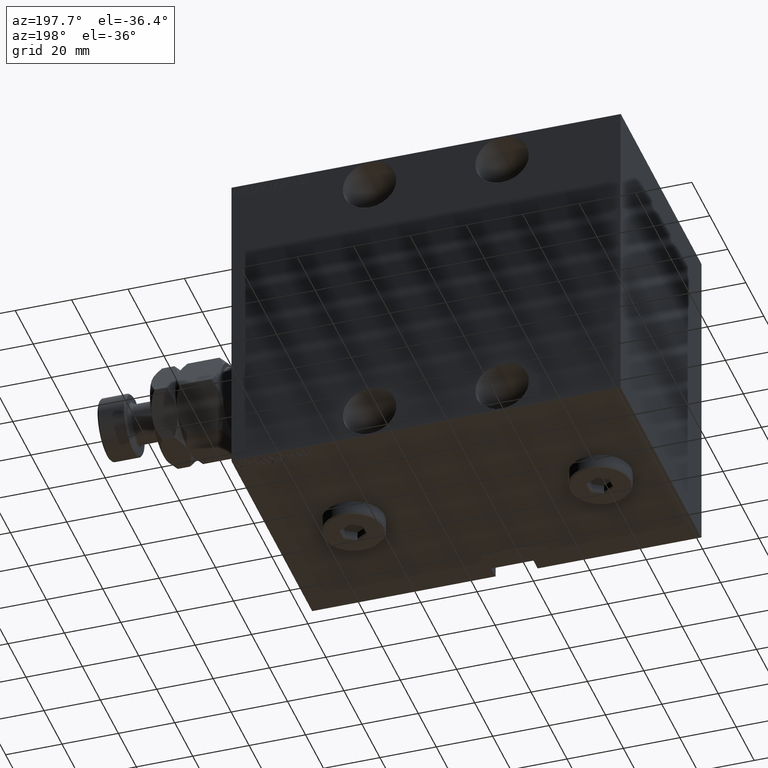
[diagram: clean part render]
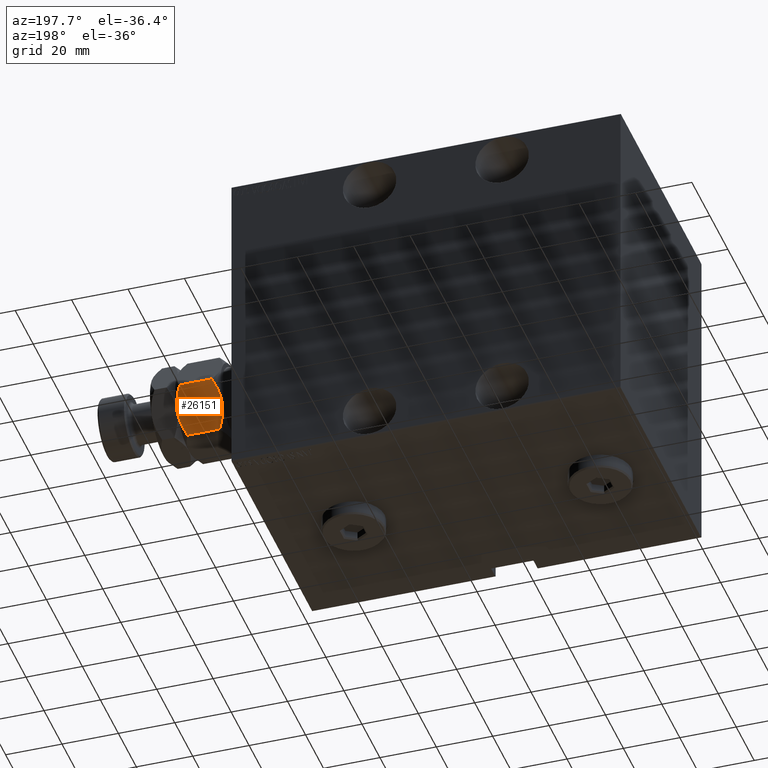
[diagram: same view with one face highlighted and labeled with its STEP entity id]
A machine part, auxiliary view. The second image highlights one B-rep face of the part: STEP entity #26151.
In plain terms, the highlighted planar face has unit normal (0, -0.866, 0.5).
Its self-contained STEP definition (entity closure, byte-faithful):
#244 = VERTEX_POINT ( 'NONE', #17517 ) ;
#1171 = CARTESIAN_POINT ( 'NONE',  ( 3.803331551779305683E-16, 17.32050807568877104, 13.67949192431124317 ) ) ;
#1230 = CARTESIAN_POINT ( 'NONE',  ( 15.00000000000000000, 8.660254037844389075, 13.67949192431123784 ) ) ;
#2262 = B_SPLINE_CURVE_WITH_KNOTS ( 'NONE', 3,
 ( #24621, #21369, #42318, #3428, #10181, #3896, #14408, #46053 ),
 .UNSPECIFIED., .F., .F.,
 ( 4, 2, 2, 4 ),
 ( 2.544309033652185071E-07, 0.004488823491893902638, 0.006733108022389172782, 0.008977392552884443794 ),
 .UNSPECIFIED. ) ;
#2580 = B_SPLINE_CURVE_WITH_KNOTS ( 'NONE', 3,
 ( #22203, #4512, #19183, #5202, #26602, #23572 ),
 .UNSPECIFIED., .F., .F.,
 ( 4, 2, 4 ),
 ( 0.008977392552884443794, 0.01343452311421656532, 0.01789165367554868685 ),
 .UNSPECIFIED. ) ;
#3428 = CARTESIAN_POINT ( 'NONE',  ( 4.247772349543482484, 14.86805556622358893, 0.4475714085130255149 ) ) ;
#3896 = CARTESIAN_POINT ( 'NONE',  ( 6.176419610670692784, 13.75455055083996214, 0.05953537397470201609 ) ) ;
#4261 = VERTEX_POINT ( 'NONE', #6143 ) ;
#4450 = CARTESIAN_POINT ( 'NONE',  ( 1.174746544192161846, 16.64226784216984356, 14.35773215783022572 ) ) ;
#4512 = CARTESIAN_POINT ( 'NONE',  ( 8.804550678576910983, 12.23719837131869426, -5.031375706690542042E-16 ) ) ;
#5202 = CARTESIAN_POINT ( 'NONE',  ( 12.61607045183964715, 10.03661640420386902, 1.060479031370879843 ) ) ;
#5406 = EDGE_CURVE ( 'NONE', #38018, #23302, #17994, .T. ) ;
#5873 = FACE_OUTER_BOUND ( 'NONE', #40539, .T. ) ;
#6143 = CARTESIAN_POINT ( 'NONE',  ( 7.499999999999997335, 12.99038105676658184, 0.000000000000000000 ) ) ;
#7319 = CARTESIAN_POINT ( 'NONE',  ( 7.500000000000000000, 12.99038105676657651, 16.00000000000000000 ) ) ;
#7940 = CARTESIAN_POINT ( 'NONE',  ( 6.195449321423087241, 13.74356374221446764, 16.00000000000000355 ) ) ;
#10181 = CARTESIAN_POINT ( 'NONE',  ( 4.881674457977373649, 14.50207201327941320, 0.2838026619462936107 ) ) ;
#10511 = CARTESIAN_POINT ( 'NONE',  ( 13.82389157469336283, 9.339280553791368789, 14.35851844025821400 ) ) ;
#11906 = CARTESIAN_POINT ( 'NONE',  ( 2.383929548160350631, 15.94414570932928576, 14.93952096862913059 ) ) ;
#13845 = CARTESIAN_POINT ( 'NONE',  ( 8.156876182308252510, 12.61113341608665728, 16.00000000000000355 ) ) ;
#14023 = CARTESIAN_POINT ( 'NONE',  ( 15.00000000000000000, 8.660254037844389075, 13.67949192431123784 ) ) ;
#14282 = CARTESIAN_POINT ( 'NONE',  ( 15.00000000000000000, 8.660254037844389075, 16.00000000000000000 ) ) ;
#14408 = CARTESIAN_POINT ( 'NONE',  ( 6.843123817691747490, 13.36962869744650639, -3.557538378468061917E-16 ) ) ;
#14552 = CARTESIAN_POINT ( 'NONE',  ( 8.823580389329306328, 12.22621156269319798, 15.94046462602529957 ) ) ;
#15187 = B_SPLINE_CURVE_WITH_KNOTS ( 'NONE', 3,
 ( #14023, #10511, #24700, #30768, #45966, #14552, #13845, #7319 ),
 .UNSPECIFIED., .F., .F.,
 ( 4, 2, 2, 4 ),
 ( 2.544309033641602453E-07, 0.004488823491893906975, 0.006733108022389177119, 0.008977392552884448998 ),
 .UNSPECIFIED. ) ;
#15193 = CARTESIAN_POINT ( 'NONE',  ( 15.00000000000000000, 8.660254037844389075, 2.320508075688765715 ) ) ;
#15720 = VERTEX_POINT ( 'NONE', #17392 ) ;
#15965 = ORIENTED_EDGE ( 'NONE', *, *, #41376, .F. ) ;
#17392 = CARTESIAN_POINT ( 'NONE',  ( 3.803331551779305683E-16, 17.32050807568877104, 13.67949192431124317 ) ) ;
#17517 = CARTESIAN_POINT ( 'NONE',  ( 7.500000000000000000, 12.99038105676657651, 16.00000000000000000 ) ) ;
#17994 = LINE ( 'NONE', #14282, #30358 ) ;
#18252 = CARTESIAN_POINT ( 'NONE',  ( 0.000000000000000000, 17.32050807568877104, 16.00000000000000000 ) ) ;
#18443 = CARTESIAN_POINT ( 'NONE',  ( 4.913081180497409939, 14.48393933357810504, 15.76967007806078946 ) ) ;
#18625 = CARTESIAN_POINT ( 'NONE',  ( 7.621669386706803087E-17, 17.32050807568877104, 2.320508075688761718 ) ) ;
#18716 = DIRECTION ( 'NONE',  ( -0.000000000000000000, -0.000000000000000000, -1.000000000000000000 ) ) ;
#19183 = CARTESIAN_POINT ( 'NONE',  ( 10.08691881950258740, 11.49682277995505331, 0.2303299219392160591 ) ) ;
#20469 = EDGE_CURVE ( 'NONE', #4261, #23302, #2580, .T. ) ;
#21369 = CARTESIAN_POINT ( 'NONE',  ( 1.176108425306640504, 16.64148155974179843, 1.641481559741787111 ) ) ;
#21413 = VECTOR ( 'NONE', #18716, 1000.000000000000000 ) ;
#21432 = ORIENTED_EDGE ( 'NONE', *, *, #41812, .F. ) ;
#21695 = DIRECTION ( 'NONE',  ( -0.000000000000000000, -0.000000000000000000, -1.000000000000000000 ) ) ;
#21915 = CARTESIAN_POINT ( 'NONE',  ( 7.500000000000000000, 12.99038105676657651, 16.00000000000000000 ) ) ;
#22097 = ORIENTED_EDGE ( 'NONE', *, *, #20469, .F. ) ;
#22203 = CARTESIAN_POINT ( 'NONE',  ( 7.499999999999997335, 12.99038105676658184, 0.000000000000000000 ) ) ;
#23302 = VERTEX_POINT ( 'NONE', #15193 ) ;
#23572 = CARTESIAN_POINT ( 'NONE',  ( 15.00000000000000000, 8.660254037844389075, 2.320508075688765715 ) ) ;
#23773 = AXIS2_PLACEMENT_3D ( 'NONE', #41475, #26823, #30779 ) ;
#24621 = CARTESIAN_POINT ( 'NONE',  ( 7.621669386706803087E-17, 17.32050807568877104, 2.320508075688761718 ) ) ;
#24700 = CARTESIAN_POINT ( 'NONE',  ( 12.62116548881249756, 10.03367478323606221, 14.93551393225599710 ) ) ;
#24728 = ORIENTED_EDGE ( 'NONE', *, *, #5406, .T. ) ;
#26151 = ADVANCED_FACE ( 'NONE', ( #5873 ), #33823, .F. ) ;
#26602 = CARTESIAN_POINT ( 'NONE',  ( 13.82525345580783949, 9.338494271363313004, 1.642267842169781833 ) ) ;
#26823 = DIRECTION ( 'NONE',  ( -0.4999999999999997780, -0.8660254037844388186, 0.000000000000000000 ) ) ;
#30358 = VECTOR ( 'NONE', #21695, 1000.000000000000000 ) ;
#30588 = VERTEX_POINT ( 'NONE', #18625 ) ;
#30768 = CARTESIAN_POINT ( 'NONE',  ( 10.75222765045651663, 11.11270654730956586, 15.55242859148697576 ) ) ;
#30779 = DIRECTION ( 'NONE',  ( 0.8660254037844387076, -0.4999999999999997224, 0.000000000000000000 ) ) ;
#33823 = PLANE ( 'NONE',  #23773 ) ;
#36397 = LINE ( 'NONE', #18252, #21413 ) ;
#36426 = EDGE_CURVE ( 'NONE', #15720, #30588, #36397, .T. ) ;
#37338 = ORIENTED_EDGE ( 'NONE', *, *, #36426, .F. ) ;
#38018 = VERTEX_POINT ( 'NONE', #1230 ) ;
#40539 = EDGE_LOOP ( 'NONE', ( #44887, #37338, #21432, #15965, #24728, #22097 ) ) ;
#40731 = B_SPLINE_CURVE_WITH_KNOTS ( 'NONE', 3,
 ( #21915, #7940, #18443, #11906, #4450, #1171 ),
 .UNSPECIFIED., .F., .F.,
 ( 4, 2, 4 ),
 ( 0.008977392552884448998, 0.01343452311421656706, 0.01789165367554868338 ),
 .UNSPECIFIED. ) ;
#41376 = EDGE_CURVE ( 'NONE', #38018, #244, #15187, .T. ) ;
#41475 = CARTESIAN_POINT ( 'NONE',  ( 15.00000000000000000, 8.660254037844389075, 16.00000000000000000 ) ) ;
#41812 = EDGE_CURVE ( 'NONE', #244, #15720, #40731, .T. ) ;
#42318 = CARTESIAN_POINT ( 'NONE',  ( 2.378834511187503331, 15.94708733029709080, 1.064486067744004671 ) ) ;
#44183 = EDGE_CURVE ( 'NONE', #30588, #4261, #2262, .T. ) ;
#44887 = ORIENTED_EDGE ( 'NONE', *, *, #44183, .F. ) ;
#45966 = CARTESIAN_POINT ( 'NONE',  ( 10.11832554202262457, 11.47869010025374514, 15.71619733805371411 ) ) ;
#46053 = CARTESIAN_POINT ( 'NONE',  ( 7.499999999999997335, 12.99038105676658184, 0.000000000000000000 ) ) ;